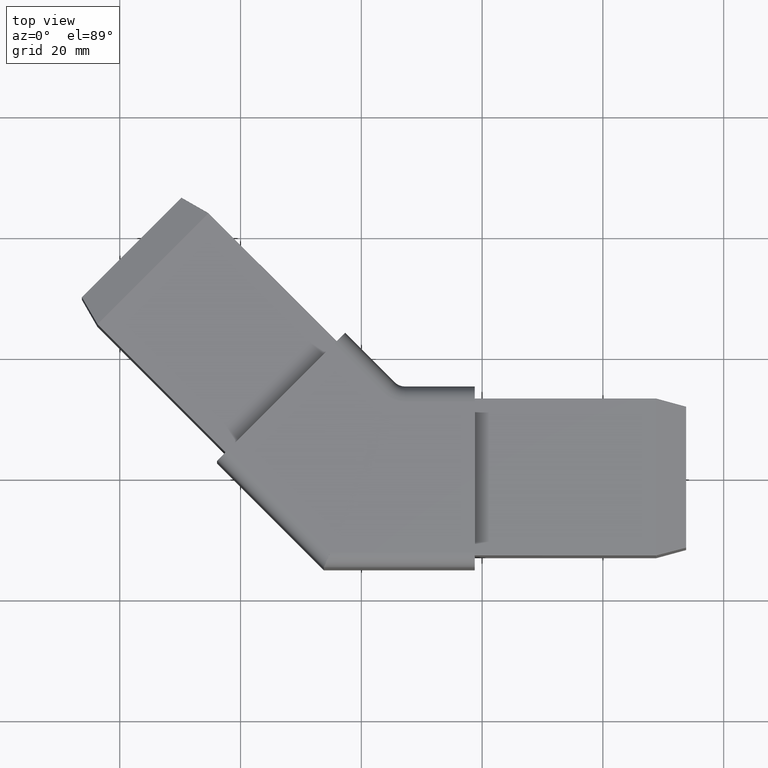
[diagram: clean part render]
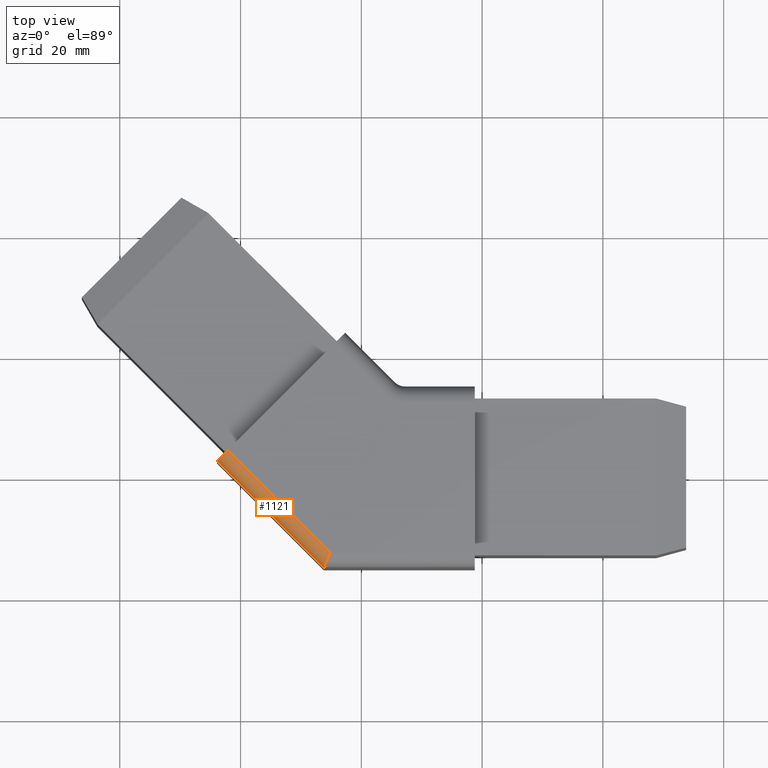
[diagram: same view with one face highlighted and labeled with its STEP entity id]
A machine part, top view. The second image highlights one B-rep face of the part: STEP entity #1121.
In plain terms, the highlighted cylindrical surface (edge-blend (fillet) strip) has radius 2.5 mm, axis along (0.7071, -0.7071, 0).
Its self-contained STEP definition (entity closure, byte-faithful):
#44=CIRCLE('',#1258,2.5);
#82=ELLIPSE('',#1255,2.6904014127007,2.5);
#106=CYLINDRICAL_SURFACE('',#1257,2.5);
#159=FACE_OUTER_BOUND('',#223,.T.);
#223=EDGE_LOOP('',(#959,#960,#961,#962));
#323=LINE('',#1903,#425);
#326=LINE('',#1935,#428);
#425=VECTOR('',#1561,10.);
#428=VECTOR('',#1574,10.);
#535=VERTEX_POINT('',#1900);
#536=VERTEX_POINT('',#1902);
#539=VERTEX_POINT('',#1929);
#540=VERTEX_POINT('',#1933);
#685=EDGE_CURVE('',#536,#535,#323,.T.);
#689=EDGE_CURVE('',#536,#539,#82,.T.);
#691=EDGE_CURVE('',#535,#540,#44,.T.);
#692=EDGE_CURVE('',#540,#539,#326,.T.);
#959=ORIENTED_EDGE('',*,*,#689,.F.);
#960=ORIENTED_EDGE('',*,*,#685,.T.);
#961=ORIENTED_EDGE('',*,*,#691,.T.);
#962=ORIENTED_EDGE('',*,*,#692,.T.);
#1121=ADVANCED_FACE('',(#159),#106,.T.);
#1255=AXIS2_PLACEMENT_3D('',#1930,#1566,#1567);
#1257=AXIS2_PLACEMENT_3D('',#1932,#1570,#1571);
#1258=AXIS2_PLACEMENT_3D('',#1934,#1572,#1573);
#1561=DIRECTION('',(-0.707106781186547,0.707106781186548,0.));
#1566=DIRECTION('center_axis',(0.918342767162943,-0.395786005310331,4.64123638945867E-16));
#1567=DIRECTION('ref_axis',(-0.395786005310331,-0.918342767162942,0.));
#1570=DIRECTION('center_axis',(0.707106781186547,-0.707106781186548,0.));
#1571=DIRECTION('ref_axis',(-0.499999999999999,-0.5,0.707106781186548));
#1572=DIRECTION('center_axis',(0.707106781186547,-0.707106781186548,0.));
#1573=DIRECTION('ref_axis',(-0.499999999999999,-0.5,0.707106781186548));
#1574=DIRECTION('',(0.707106781186547,-0.707106781186548,0.));
#1900=CARTESIAN_POINT('',(-22.1232498629835,4.44558033331983,30.));
#1902=CARTESIAN_POINT('',(-5.17766952966371,-12.5,30.));
#1903=CARTESIAN_POINT('',(-15.809400031756,-1.86826949790773,30.));
#1929=CARTESIAN_POINT('',(-6.24249275747779,-14.9707106781186,27.5));
#1930=CARTESIAN_POINT('Origin',(-5.1776695296637,-12.5,27.5));
#1932=CARTESIAN_POINT('Origin',(-15.809400031756,-1.86826949790773,27.5));
#1933=CARTESIAN_POINT('',(-23.8910168159499,2.67781338035347,27.5));
#1934=CARTESIAN_POINT('Origin',(-22.1232498629835,4.44558033331981,27.5));
#1935=CARTESIAN_POINT('',(-17.5771669847223,-3.6360364508741,27.5));